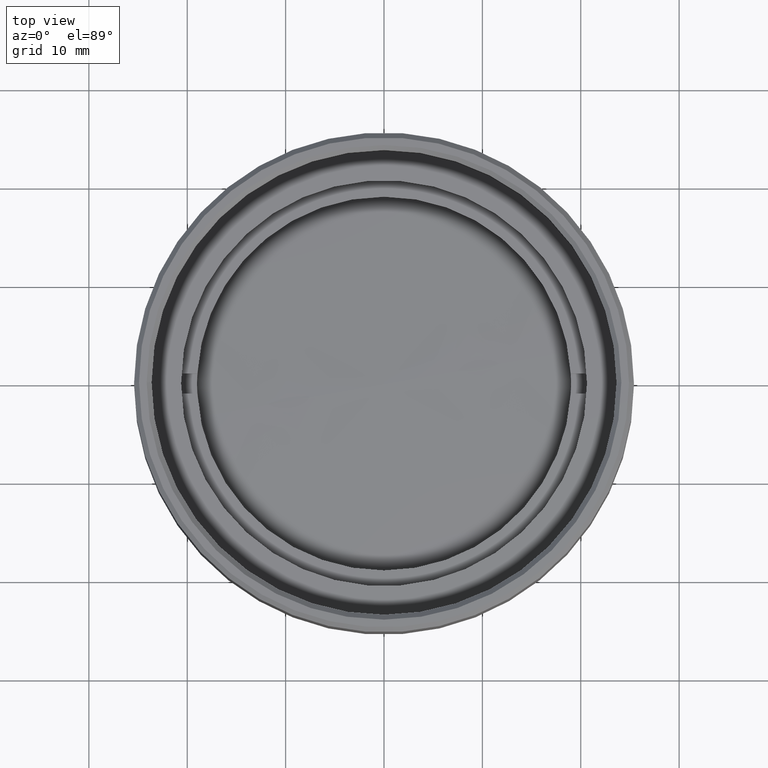
[diagram: clean part render]
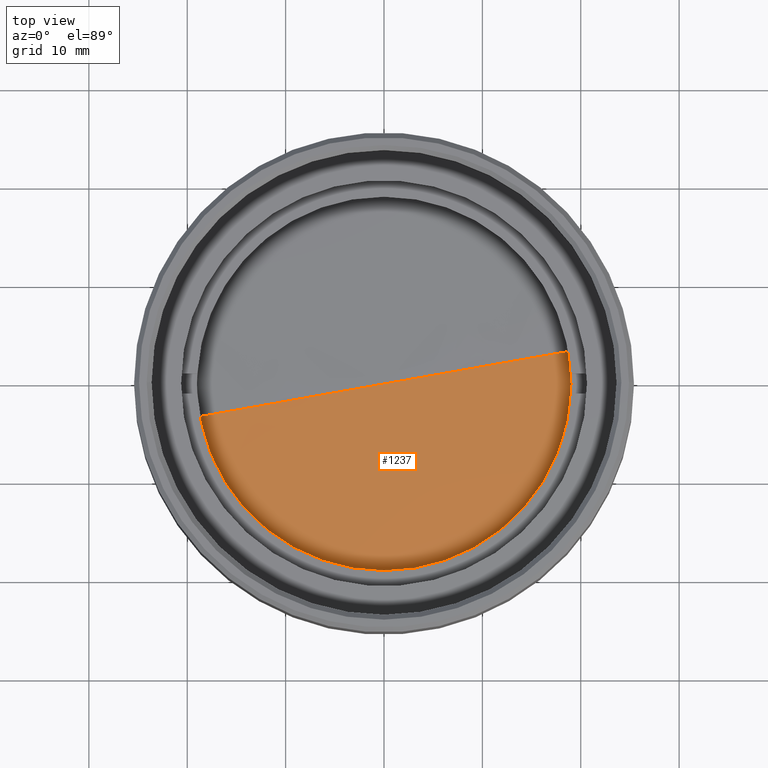
[diagram: same view with one face highlighted and labeled with its STEP entity id]
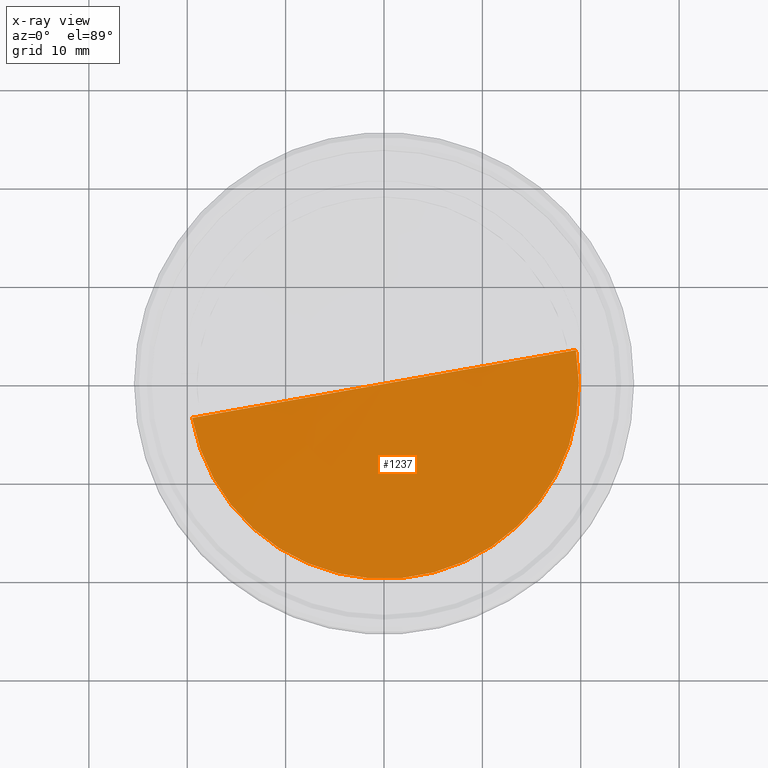
[diagram: x-ray of the same camera — body ghosted, the highlighted face saturated]
A machine part, top view. The second image highlights one B-rep face of the part: STEP entity #1237.
The next image is the same camera in x-ray: the body ghosted, the highlighted face saturated — about 0% of this face is hidden behind the body in this view.
In plain terms, the highlighted spherical surface has radius 315.18 mm.
Its self-contained STEP definition (entity closure, byte-faithful):
#98 = CARTESIAN_POINT ( 'NONE',  ( -1.926104053869234965E-14, 0.000000000000000000, -0.6233367710080099933 ) ) ;
#135 = DIRECTION ( 'NONE',  ( -6.019523240502498530E-17, 0.000000000000000000, 1.000000000000000000 ) ) ;
#294 = FACE_OUTER_BOUND ( 'NONE', #1403, .T. ) ;
#394 = VERTEX_POINT ( 'NONE', #1222 ) ;
#467 = CARTESIAN_POINT ( 'NONE',  ( 0.000000000000000000, 0.000000000000000000, -315.1800000000000068 ) ) ;
#471 = CIRCLE ( 'NONE', #1448, 19.81257222680805086 ) ;
#592 = CARTESIAN_POINT ( 'NONE',  ( 0.000000000000000000, 0.000000000000000000, -315.1800000000000068 ) ) ;
#610 = VERTEX_POINT ( 'NONE', #1195 ) ;
#751 = AXIS2_PLACEMENT_3D ( 'NONE', #592, #1765, #1313 ) ;
#1140 = ORIENTED_EDGE ( 'NONE', *, *, #1574, .T. ) ;
#1195 = CARTESIAN_POINT ( 'NONE',  ( 19.81257222680805086, 2.437816957169164748E-15, -0.6233367710080079949 ) ) ;
#1200 = DIRECTION ( 'NONE',  ( 0.000000000000000000, -1.000000000000000000, 0.000000000000000000 ) ) ;
#1222 = CARTESIAN_POINT ( 'NONE',  ( -19.81257222680810060, 0.000000000000000000, -0.6233367710080109925 ) ) ;
#1234 = ORIENTED_EDGE ( 'NONE', *, *, #1863, .T. ) ;
#1237 = ADVANCED_FACE ( 'NONE', ( #294 ), #1908, .T. ) ;
#1256 = AXIS2_PLACEMENT_3D ( 'NONE', #467, #1200, #1788 ) ;
#1283 = CIRCLE ( 'NONE', #1256, 315.1800000000000068 ) ;
#1313 = DIRECTION ( 'NONE',  ( -1.000000000000000000, 0.000000000000000000, 0.000000000000000000 ) ) ;
#1317 = DIRECTION ( 'NONE',  ( -1.000000000000000000, 0.000000000000000000, -6.019523240502503461E-17 ) ) ;
#1403 = EDGE_LOOP ( 'NONE', ( #1234, #1140 ) ) ;
#1448 = AXIS2_PLACEMENT_3D ( 'NONE', #98, #135, #1317 ) ;
#1574 = EDGE_CURVE ( 'NONE', #610, #394, #1283, .T. ) ;
#1765 = DIRECTION ( 'NONE',  ( 0.000000000000000000, -0.000000000000000000, 1.000000000000000000 ) ) ;
#1788 = DIRECTION ( 'NONE',  ( 0.000000000000000000, 0.000000000000000000, -1.000000000000000000 ) ) ;
#1863 = EDGE_CURVE ( 'NONE', #394, #610, #471, .T. ) ;
#1908 = SPHERICAL_SURFACE ( 'NONE', #751, 315.1800000000000068 ) ;